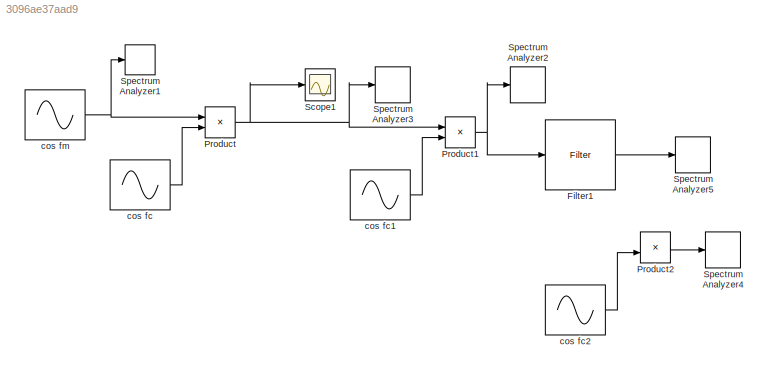
MODEL slx_3096ae37aad9
KIND model
CONFIG AbsTol = auto
CONFIG EnableMultiTasking = off
CONFIG FixedStep = auto
CONFIG MaxStep = auto
CONFIG MinStep = auto
CONFIG RelTol = 1e-3
CONFIG SampleTimeConstraint = Unconstrained
CONFIG SolverName = VariableStepAuto
CONFIG StartTime = 0.0
CONFIG StopTime = 0.1
BLOCK [Reference] Filter1  REF=rfmathmodels2/Filter
  SourceBlock = rfmathmodels2/Filter
  SourceType = rf.Filter
BLOCK [Product] Product
BLOCK [Product] Product1
BLOCK [Product] Product2
  Commented = on
BLOCK [Scope] Scope1
  Floating = off
  NumInputPorts = 1
  ScopeSpecificationString = Simulink.scopes.TimeScopeBlockCfg('CurrentConfiguration', extmgr.ConfigurationSet(extmgr.Configuration('Core','General UI',true),extmgr.Configuration('Core','Source UI',true),extmgr.Configuration('Sources','WiredSimulink',true,'DataLoggingVariableName','ScopeData1'),extmgr.Configuration('Visuals','Time Domain',true,'SerializedDisplays',{struct('MinYLimReal','-1.24996','MaxYLimReal','1.25','YLabelR...<+1427ch>
BLOCK [SpectrumAnalyzer] Spectrum Analyzer1
  GraphicalSettings = {"GraphicalSettings":{"Style":{"BackgroundColor":[0.12941176470588237,0.12941176470588237,0.12941176470588237],"AxesColor":[0.07058823529411765,0.07058823529411765,0.07058823529411765],"LabelsColor":[0.8509803921568627,0.8509803921568627,0.8509803921568627],"PreserveColors":false,"Visible":[true],"LineStyle":["-"],"LineColor":[[1,1,0.06666666666666667]],"LineWidth":[1.5],"Marker":["none"],"FontSiz...<+934ch>
  OpenAtSimulationStart = off
  SampleRate = 44.1e3
  ScopeFrameLocation = window
  StartFrequency = 20
  StopFrequency = 20e3
  WasSavedAsWebScope = on
  WindowPosition = [7.000000,-1079.000000,1920.000000,1057.000000,]
  YLimits = [-53.06122828,27.41733441]
BLOCK [SpectrumAnalyzer] Spectrum Analyzer2
  GraphicalSettings = {"GraphicalSettings":{"Style":{"BackgroundColor":[0.12941176470588237,0.12941176470588237,0.12941176470588237],"AxesColor":[0.07058823529411765,0.07058823529411765,0.07058823529411765],"LabelsColor":[0.8509803921568627,0.8509803921568627,0.8509803921568627],"PreserveColors":false,"Visible":[true],"LineStyle":["-"],"LineColor":[[1,1,0.06666666666666667]],"LineWidth":[1.5],"Marker":["none"],"FontSiz...<+933ch>  <repeated x4 — deduplicated; at blocks: Spectrum Analyzer2, Spectrum Analyzer3, Spectrum Analyzer4, Spectrum Analyzer5>
  OpenAtSimulationStart = off
  SampleRate = 44.1e3
  ScopeFrameLocation = window
  SelectedToolstripTab = spectrumAnalyzerToolstrip.estimationTab
  StartFrequency = 20
  StopFrequency = 20e3
  WasSavedAsWebScope = on
  WindowPosition = [7.000000,-1079.000000,1920.000000,1057.000000,]
  YLimits = [-52.30886083,20.64603656]
BLOCK [SpectrumAnalyzer] Spectrum Analyzer3
  OpenAtSimulationStart = off
  SampleRate = 44.1e3
  ScopeFrameLocation = window
  StartFrequency = 20
  StopFrequency = 20e3
  WasSavedAsWebScope = on
  WindowPosition = [1.000000,1.000000,1920.000000,1057.000000,]
  YLimits = [-52.32816931,20.81980716]
BLOCK [SpectrumAnalyzer] Spectrum Analyzer4
  Commented = on
  OpenAtSimulationStart = off
  SampleRate = 44.1e3
  ScopeFrameLocation = window
  SelectedToolstripTab = spectrumAnalyzerToolstrip.estimationTab
  StartFrequency = 20
  StopFrequency = 20e3
  WasSavedAsWebScope = on
  WindowPosition = [1.000000,1.000000,1920.000000,1057.000000,]
  YLimits = [-51.57709306,14.06031154]
BLOCK [SpectrumAnalyzer] Spectrum Analyzer5
  OpenAtSimulationStart = off
  SampleRate = 44.1e3
  ScopeFrameLocation = window
  SelectedToolstripTab = spectrumAnalyzerToolstrip.estimationTab
  StartFrequency = 20
  StopFrequency = 20e3
  WasSavedAsWebScope = on
  WindowPosition = [7.000000,-1079.000000,1920.000000,1057.000000,]
  YLimits = [-51.57709306,14.06031154]
BLOCK [Sin] cos fc
  Frequency = 2*pi*fc_test_mod_am
  Phase = pi/2
  SampleTime = ts_test_mod_am
BLOCK [Sin] cos fc1
  Frequency = 2*pi*fc_mod_fm
  Phase = pi/2
  SampleTime = ts_test_mod_am
BLOCK [Sin] cos fc2
  Commented = on
  Frequency = 2*pi*fc_mod_fm*2
  Phase = pi/2
  SampleTime = ts_test_mod_am
BLOCK [Sin] cos fm
  Frequency = 2*pi*fm_test_mod_am
  Phase = pi/2
  SampleTime = ts_test_mod_am
LINE Filter1:1 -> Spectrum Analyzer5:1
NET Product1:1 -> Filter1:1, Spectrum Analyzer2:1
LINE Product2:1 -> Spectrum Analyzer4:1
NET Product:1 -> Product1:1, Scope1:1, Spectrum Analyzer3:1
LINE cos fc1:1 -> Product1:2
LINE cos fc2:1 -> Product2:2
LINE cos fc:1 -> Product:2
NET cos fm:1 -> Product:1, Spectrum Analyzer1:1
note: NET lines group one-source signal fan-out (src -> all destinations, sorted); 1:1 wires keep LINE
